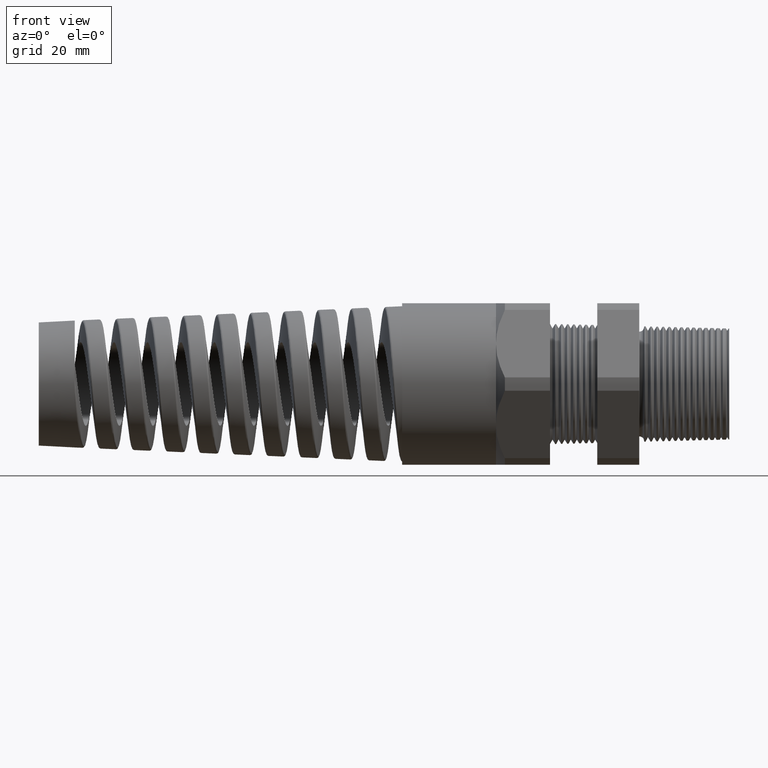
[diagram: clean part render]
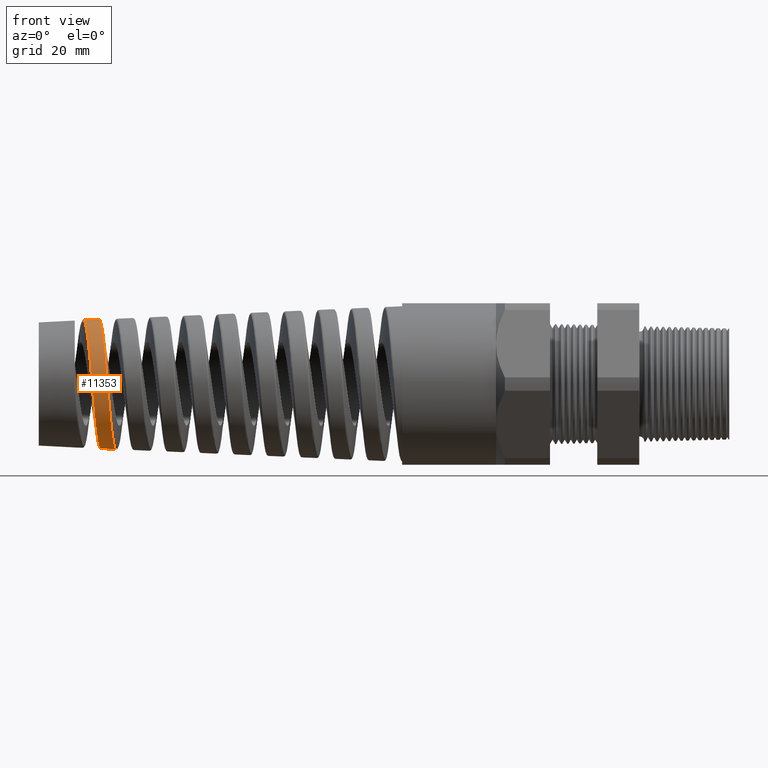
[diagram: same view with one face highlighted and labeled with its STEP entity id]
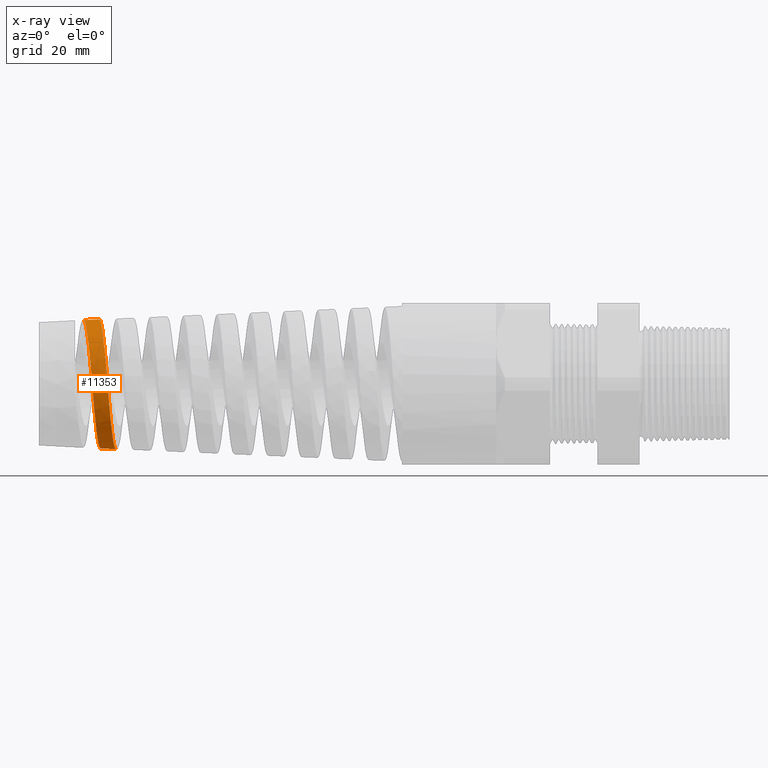
[diagram: x-ray of the same camera — body ghosted, the highlighted face saturated]
A machine part, front view. The second image highlights one B-rep face of the part: STEP entity #11353.
The next image is the same camera in x-ray: the body ghosted, the highlighted face saturated — about 0% of this face is hidden behind the body in this view.
In plain terms, the highlighted conical surface has half-angle 2.5 deg.
Its self-contained STEP definition (entity closure, byte-faithful):
#2776 = CARTESIAN_POINT ( 'NONE',  ( -3.853580578884478100, -2.497534897661308500E-014, 0.4233109678529750600 ) ) ;
#2777 = CARTESIAN_POINT ( 'NONE',  ( -3.851285439636109100, -0.02776085274634721900, 0.4234111757966636000 ) ) ;
#2778 = CARTESIAN_POINT ( 'NONE',  ( -3.849003074422635800, -0.05541501797271731300, 0.4208065801318443500 ) ) ;
#2779 = CARTESIAN_POINT ( 'NONE',  ( -3.845532058814507400, -0.09672548755626631000, 0.4127116216461909100 ) ) ;
#2780 = CARTESIAN_POINT ( 'NONE',  ( -3.844375381796193200, -0.1103603006328572300, 0.4093249471423072700 ) ) ;
#2781 = CARTESIAN_POINT ( 'NONE',  ( -3.842080249248849300, -0.1370132306356477700, 0.4012961643539277300 ) ) ;
#2782 = CARTESIAN_POINT ( 'NONE',  ( -3.839794071192375000, -0.1631601890904116300, 0.3919910300949284200 ) ) ;
#2783 = CARTESIAN_POINT ( 'NONE',  ( -3.837503328888759200, -0.1883045765612151600, 0.3801618450078019200 ) ) ;
#2784 = CARTESIAN_POINT ( 'NONE',  ( -3.835200257559571800, -0.2129378772243039600, 0.3670482054483890100 ) ) ;
#2785 = CARTESIAN_POINT ( 'NONE',  ( -3.834036449721415400, -0.2250587702172329700, 0.3598045955692660800 ) ) ;
#2786 = CARTESIAN_POINT ( 'NONE',  ( -3.830579917580843900, -0.2599495876072638300, 0.3365285009135591800 ) ) ;
#2787 = CARTESIAN_POINT ( 'NONE',  ( -3.828308592394920500, -0.2814001034594741900, 0.3189269256192355800 ) ) ;
#2788 = CARTESIAN_POINT ( 'NONE',  ( -3.823732271376244300, -0.3207398223203579700, 0.2796354947121221800 ) ) ;
#2789 = CARTESIAN_POINT ( 'NONE',  ( -3.821406997314784200, -0.3387342247674439700, 0.2577125021648524700 ) ) ;
#2790 = CARTESIAN_POINT ( 'NONE',  ( -3.816825480202521400, -0.3696104717444693200, 0.2114584181447838900 ) ) ;
#2791 = CARTESIAN_POINT ( 'NONE',  ( -3.814553926683602400, -0.3826919854710199600, 0.1869910221630510000 ) ) ;
#2792 = CARTESIAN_POINT ( 'NONE',  ( -3.811109429267376400, -0.3987246888192297900, 0.1482546284583072800 ) ) ;
#2793 = CARTESIAN_POINT ( 'NONE',  ( -3.809950713183643400, -0.4034736127711798800, 0.1349535291621620200 ) ) ;
#2794 = CARTESIAN_POINT ( 'NONE',  ( -3.807656853516018500, -0.4115519656134363800, 0.1082292630213497100 ) ) ;
#2795 = CARTESIAN_POINT ( 'NONE',  ( -3.806516064744005500, -0.4149120504375729500, 0.09474415240817112000 ) ) ;
#2796 = CARTESIAN_POINT ( 'NONE',  ( -3.803095209420124700, -0.4229945039553710800, 0.05392842569763840700 ) ) ;
#2797 = CARTESIAN_POINT ( 'NONE',  ( -3.800808788014024700, -0.4257383265779275900, 0.02614999097318905200 ) ) ;
#2798 = CARTESIAN_POINT ( 'NONE',  ( -3.796196077092654600, -0.4256843366583172900, -0.03002106878506442500 ) ) ;
#2799 = CARTESIAN_POINT ( 'NONE',  ( -3.793929706314598700, -0.4229051416696659200, -0.05766656843145517200 ) ) ;
#2800 = CARTESIAN_POINT ( 'NONE',  ( -3.790515210227183300, -0.4147562466076311100, -0.09849239108184701400 ) ) ;
#2801 = CARTESIAN_POINT ( 'NONE',  ( -3.789374705890222300, -0.4113717717552503600, -0.1119931626436366100 ) ) ;
#2802 = CARTESIAN_POINT ( 'NONE',  ( -3.787077620666182000, -0.4032329691646131500, -0.1387726853103420400 ) ) ;
#2803 = CARTESIAN_POINT ( 'NONE',  ( -3.785920669086813000, -0.3984676716223398700, -0.1520519821059694900 ) ) ;
#2804 = CARTESIAN_POINT ( 'NONE',  ( -3.782486964041948100, -0.3824244535847969300, -0.1906798883749353000 ) ) ;
#2805 = CARTESIAN_POINT ( 'NONE',  ( -3.780224053971725300, -0.3693339970560732300, -0.2151325488887025900 ) ) ;
#2806 = CARTESIAN_POINT ( 'NONE',  ( -3.776803807985695800, -0.3461242957422104300, -0.2498665379599796200 ) ) ;
#2807 = CARTESIAN_POINT ( 'NONE',  ( -3.775653461937913000, -0.3377442694863082600, -0.2611697843359349600 ) ) ;
#2808 = CARTESIAN_POINT ( 'NONE',  ( -3.773357632368075100, -0.3199490972191119700, -0.2828409074235293500 ) ) ;
#2809 = CARTESIAN_POINT ( 'NONE',  ( -3.772217762177126200, -0.3105838818454733100, -0.2931599467681831900 ) ) ;
#2810 = CARTESIAN_POINT ( 'NONE',  ( -3.768805135775986900, -0.2811270985855324200, -0.3226115970301493600 ) ) ;
#2811 = CARTESIAN_POINT ( 'NONE',  ( -3.766538810541089100, -0.2596872627869065100, -0.3402529142136160300 ) ) ;
#2812 = CARTESIAN_POINT ( 'NONE',  ( -3.763098556992395100, -0.2247539631646793500, -0.3636404951047688100 ) ) ;
#2813 = CARTESIAN_POINT ( 'NONE',  ( -3.761948583053126500, -0.2126781445318212700, -0.3708872266736180100 ) ) ;
#2814 = CARTESIAN_POINT ( 'NONE',  ( -3.759671641865488300, -0.1881184328135015700, -0.3840387405049407500 ) ) ;
#2815 = CARTESIAN_POINT ( 'NONE',  ( -3.757405759932371600, -0.1630305282220253200, -0.3959316536730841900 ) ) ;
#2816 = CARTESIAN_POINT ( 'NONE',  ( -3.755138174017058200, -0.1369025021528536800, -0.4053411280802409200 ) ) ;
#2817 = CARTESIAN_POINT ( 'NONE',  ( -3.752858679607595800, -0.1102476548794573300, -0.4134903930973449800 ) ) ;
#2818 = CARTESIAN_POINT ( 'NONE',  ( -3.751706646986736600, -0.09658041140886722300, -0.4169483957784525000 ) ) ;
#2819 = CARTESIAN_POINT ( 'NONE',  ( -3.748270037075584100, -0.05539608601184022000, -0.4252312872119439800 ) ) ;
#2820 = CARTESIAN_POINT ( 'NONE',  ( -3.746012907309678000, -0.02777613424006502100, -0.4280074738204736100 ) ) ;
#2821 = CARTESIAN_POINT ( 'NONE',  ( -3.743746689491925100, 1.074689038493862100E-012, -0.4281064190271631200 ) ) ;
#2822 = B_SPLINE_CURVE_WITH_KNOTS ( 'NONE', 3,
 ( #2821, #2820, #2819, #2818, #2817, #2816, #2815, #2814, #2813, #2812, #2811, #2810, #2809, #2808, #2807, #2806, #2805, #2804, #2803, #2802, #2801, #2800, #2799, #2798, #2797, #2796, #2795, #2794, #2793, #2792, #2791, #2790, #2789, #2788, #2787, #2786, #2785, #2784, #2783, #2782, #2781, #2780, #2779, #2778, #2777, #2776 ),
 .UNSPECIFIED., .F., .F.,
 ( 4, 2, 2, 1, 2, 2, 2, 2, 2, 2, 2, 2, 2, 2, 2, 2, 2, 2, 2, 2, 1, 2, 2, 4 ),
 ( 0.6425872255184420500, 0.6447318629339441300, 0.6458041816416951700, 0.6468765003494462200, 0.6479488190571972600, 0.6490211377649483000, 0.6511657751804502700, 0.6522380938882013100, 0.6533104125959523500, 0.6554550500114544300, 0.6565273687192054700, 0.6575996874269565100, 0.6597443248424586000, 0.6618889622579606800, 0.6629612809657117200, 0.6640335996734627600, 0.6661782370889648400, 0.6683228745044668100, 0.6704675119199688900, 0.6715398306277199400, 0.6726121493354709800, 0.6736844680432220200, 0.6747567867509730600, 0.6769014241664751400 ),
 .UNSPECIFIED. ) ;
#2826 = CARTESIAN_POINT ( 'NONE',  ( -3.844563106295216100, -1.186953627347830300E-015, -0.4237046792088738900 ) ) ;
#2827 = CARTESIAN_POINT ( 'NONE',  ( -3.846846038248303000, -0.02757322120012684400, -0.4236050042472059900 ) ) ;
#2828 = CARTESIAN_POINT ( 'NONE',  ( -3.849111767233623000, -0.05488044764224979400, -0.4208397577939517200 ) ) ;
#2829 = CARTESIAN_POINT ( 'NONE',  ( -3.852538223201302800, -0.09543739370612791500, -0.4126894143384722800 ) ) ;
#2830 = CARTESIAN_POINT ( 'NONE',  ( -3.853691257491132800, -0.1089604303809387100, -0.4092772122585480200 ) ) ;
#2831 = CARTESIAN_POINT ( 'NONE',  ( -3.855986019860059500, -0.1354726532403444100, -0.4011764683794773500 ) ) ;
#2832 = CARTESIAN_POINT ( 'NONE',  ( -3.857125530876194000, -0.1484383171194071400, -0.3965046204751239100 ) ) ;
#2833 = CARTESIAN_POINT ( 'NONE',  ( -3.860538871580322600, -0.1864855461449071400, -0.3806743248154436100 ) ) ;
#2834 = CARTESIAN_POINT ( 'NONE',  ( -3.862807814746394000, -0.2107253770441542800, -0.3677183208822413200 ) ) ;
#2835 = CARTESIAN_POINT ( 'NONE',  ( -3.866265128735741000, -0.2453379636423133300, -0.3445657590692667300 ) ) ;
#2836 = CARTESIAN_POINT ( 'NONE',  ( -3.867419229596492900, -0.2565055094963735700, -0.3362673405635595000 ) ) ;
#2837 = CARTESIAN_POINT ( 'NONE',  ( -3.869705577763811600, -0.2777937438260942900, -0.3187742993558137000 ) ) ;
#2838 = CARTESIAN_POINT ( 'NONE',  ( -3.870843041766463900, -0.2879655772575991400, -0.3095461471358954000 ) ) ;
#2839 = CARTESIAN_POINT ( 'NONE',  ( -3.873119129891622300, -0.3073743571895170000, -0.2901379345708421900 ) ) ;
#2840 = CARTESIAN_POINT ( 'NONE',  ( -3.874257702434703800, -0.3166113218445922300, -0.2799578865763001100 ) ) ;
#2841 = CARTESIAN_POINT ( 'NONE',  ( -3.876548030405796700, -0.3341334437455605300, -0.2586300819737778500 ) ) ;
#2842 = CARTESIAN_POINT ( 'NONE',  ( -3.877706192582786000, -0.3424591207343760700, -0.2474164883779605700 ) ) ;
#2843 = CARTESIAN_POINT ( 'NONE',  ( -3.881157017823184700, -0.3655408152948532700, -0.2128869945876488400 ) ) ;
#2844 = CARTESIAN_POINT ( 'NONE',  ( -3.883432004298365700, -0.3784862153589724200, -0.1886660088400455000 ) ) ;
#2845 = CARTESIAN_POINT ( 'NONE',  ( -3.888004095118478900, -0.3995859537187126900, -0.1378742169772406700 ) ) ;
#2846 = CARTESIAN_POINT ( 'NONE',  ( -3.890322888159577300, -0.4077590818921419900, -0.1110275295300262200 ) ) ;
#2847 = CARTESIAN_POINT ( 'NONE',  ( -3.894899935569495300, -0.4185376133188967200, -0.05702930041337982100 ) ) ;
#2848 = CARTESIAN_POINT ( 'NONE',  ( -3.897174119142685200, -0.4212661035967230100, -0.02971307161718521300 ) ) ;
#2849 = CARTESIAN_POINT ( 'NONE',  ( -3.900627738420495000, -0.4213199107724304200, 0.01173723796066971300 ) ) ;
#2850 = CARTESIAN_POINT ( 'NONE',  ( -3.901791280460893400, -0.4206486594043861200, 0.02569826880872882700 ) ) ;
#2851 = CARTESIAN_POINT ( 'NONE',  ( -3.904094103249398100, -0.4179577388744470400, 0.05321968916675346600 ) ) ;
#2852 = CARTESIAN_POINT ( 'NONE',  ( -3.905237778439790500, -0.4159444113518857000, 0.06683172011228576100 ) ) ;
#2853 = CARTESIAN_POINT ( 'NONE',  ( -3.908665022864364700, -0.4079428914570700200, 0.1072295157030792000 ) ) ;
#2854 = CARTESIAN_POINT ( 'NONE',  ( -3.910946872365971500, -0.4000020932082042900, 0.1336062123976352000 ) ) ;
#2855 = CARTESIAN_POINT ( 'NONE',  ( -3.915587418880424100, -0.3787380894331303100, 0.1850385785740944800 ) ) ;
#2856 = CARTESIAN_POINT ( 'NONE',  ( -3.917874130639448000, -0.3657534295223235400, 0.2092891003533140200 ) ) ;
#2857 = CARTESIAN_POINT ( 'NONE',  ( -3.921310343690428600, -0.3428857313527411400, 0.2435471491265236400 ) ) ;
#2858 = CARTESIAN_POINT ( 'NONE',  ( -3.922456587459702600, -0.3346938745543734900, 0.2546109559416335200 ) ) ;
#2859 = CARTESIAN_POINT ( 'NONE',  ( -3.924763784843837900, -0.3171448059844801400, 0.2760094792314299900 ) ) ;
#2860 = CARTESIAN_POINT ( 'NONE',  ( -3.925927340231038600, -0.3077594783352605700, 0.2863610327131415600 ) ) ;
#2861 = CARTESIAN_POINT ( 'NONE',  ( -3.929382771145153900, -0.2784558785782513300, 0.3156358784141779500 ) ) ;
#2862 = CARTESIAN_POINT ( 'NONE',  ( -3.931664893739097400, -0.2572243844908180800, 0.3330344505624710500 ) ) ;
#2863 = CARTESIAN_POINT ( 'NONE',  ( -3.935120124728566100, -0.2228542368582150400, 0.3559726135933568600 ) ) ;
#2864 = CARTESIAN_POINT ( 'NONE',  ( -3.936281787501766200, -0.2109235551945801700, 0.3631146740084129100 ) ) ;
#2865 = CARTESIAN_POINT ( 'NONE',  ( -3.938602587088727800, -0.1864147506227439000, 0.3761721794987525900 ) ) ;
#2866 = CARTESIAN_POINT ( 'NONE',  ( -3.939753400622565800, -0.1739301208987189300, 0.3820447836538107300 ) ) ;
#2867 = CARTESIAN_POINT ( 'NONE',  ( -3.943197038448611000, -0.1358075859127554100, 0.3977521094897556500 ) ) ;
#2868 = CARTESIAN_POINT ( 'NONE',  ( -3.945481067038688000, -0.1095073904565150000, 0.4056945236130226600 ) ) ;
#2869 = CARTESIAN_POINT ( 'NONE',  ( -3.948961278640074700, -0.06869939675601817500, 0.4137105247279922500 ) ) ;
#2870 = CARTESIAN_POINT ( 'NONE',  ( -3.950127672331957800, -0.05489917061710687000, 0.4157130232426391500 ) ) ;
#2871 = CARTESIAN_POINT ( 'NONE',  ( -3.952437585366648200, -0.02744814017730819500, 0.4183220198754039600 ) ) ;
#2872 = CARTESIAN_POINT ( 'NONE',  ( -3.953587403790785400, -0.01372347553279797100, 0.4189445755802621000 ) ) ;
#2873 = CARTESIAN_POINT ( 'NONE',  ( -3.954736314211745500, -5.194515947539078600E-013, 0.4188944130679825900 ) ) ;
#2874 = B_SPLINE_CURVE_WITH_KNOTS ( 'NONE', 3,
 ( #2873, #2872, #2871, #2870, #2869, #2868, #2867, #2866, #2865, #2864, #2863, #2862, #2861, #2860, #2859, #2858, #2857, #2856, #2855, #2854, #2853, #2852, #2851, #2850, #2849, #2848, #2847, #2846, #2845, #2844, #2843, #2842, #2841, #2840, #2839, #2838, #2837, #2836, #2835, #2834, #2833, #2832, #2831, #2830, #2829, #2828, #2827, #2826 ),
 .UNSPECIFIED., .F., .F.,
 ( 4, 2, 2, 2, 2, 2, 2, 2, 2, 2, 2, 2, 2, 2, 2, 2, 2, 2, 2, 2, 2, 2, 2, 4 ),
 ( 0.01802185273913218400, 0.01908283631753912600, 0.02014381989594606400, 0.02226578705275994100, 0.02332677063116687900, 0.02438775420957382100, 0.02650972136638769800, 0.02757070494479463600, 0.02863168852320157500, 0.03075365568001545100, 0.03287562283682933500, 0.03393660641523627000, 0.03499758999364321200, 0.03711955715045709600, 0.03924152430727097200, 0.04136349146408485600, 0.04242447504249179100, 0.04348545862089872600, 0.04454644219930566800, 0.04560742577771261000, 0.04772939293452647900, 0.04879037651293340700, 0.04985136009134034200, 0.05197332724815420500 ),
 .UNSPECIFIED. ) ;
#6445 = DIRECTION ( 'NONE',  ( 0.0000000000000000000, 0.0000000000000000000, -1.000000000000000000 ) ) ;
#6446 = DIRECTION ( 'NONE',  ( 1.000000000000000000, 0.0000000000000000000, 0.0000000000000000000 ) ) ;
#6447 = CARTESIAN_POINT ( 'NONE',  ( -1.409999999999999900, 0.0000000000000000000, 0.0000000000000000000 ) ) ;
#6448 = AXIS2_PLACEMENT_3D ( 'NONE', #6447, #6446, #6445 ) ;
#6476 = CONICAL_SURFACE ( 'NONE', #6448, 0.5299999999999998000, 0.04363323129985853500 ) ;
#6477 = FACE_OUTER_BOUND ( 'NONE', #11274, .T. ) ;
#7890 = CARTESIAN_POINT ( 'NONE',  ( -3.954736314211745500, -5.194515947539078600E-013, 0.4188944130679825900 ) ) ;
#7949 = CARTESIAN_POINT ( 'NONE',  ( -3.853580578884478100, -2.497534897661308500E-014, 0.4233109678529750600 ) ) ;
#7950 = DIRECTION ( 'NONE',  ( 0.9990482215818576900, 5.341834311772759500E-018, 0.04361938736533629800 ) ) ;
#7951 = VECTOR ( 'NONE', #7950, 39.37007874015748100 ) ;
#7952 = CARTESIAN_POINT ( 'NONE',  ( -1.409999999999999900, 6.490628035480970000E-017, 0.5299999999999998000 ) ) ;
#7953 = LINE ( 'NONE', #7952, #7951 ) ;
#8001 = DIRECTION ( 'NONE',  ( 0.9990482215818576900, 0.0000000000000000000, -0.04361938736533629800 ) ) ;
#8002 = VECTOR ( 'NONE', #8001, 39.37007874015748100 ) ;
#8003 = CARTESIAN_POINT ( 'NONE',  ( -1.409999999999999900, 0.0000000000000000000, -0.5299999999999998000 ) ) ;
#8004 = LINE ( 'NONE', #8003, #8002 ) ;
#8005 = CARTESIAN_POINT ( 'NONE',  ( -3.743746689491925100, 1.074689038493862100E-012, -0.4281064190271631200 ) ) ;
#8210 = CARTESIAN_POINT ( 'NONE',  ( -3.844563106295216100, -1.186953627347830300E-015, -0.4237046792088738900 ) ) ;
#11274 = EDGE_LOOP ( 'NONE', ( #11275, #11276, #11278, #11279 ) ) ;
#11275 = ORIENTED_EDGE ( 'NONE', *, *, #11613, .F. ) ;
#11276 = ORIENTED_EDGE ( 'NONE', *, *, #11277, .T. ) ;
#11277 = EDGE_CURVE ( 'NONE', #11611, #11664, #2874, .T. ) ;
#11278 = ORIENTED_EDGE ( 'NONE', *, *, #11636, .T. ) ;
#11279 = ORIENTED_EDGE ( 'NONE', *, *, #11280, .T. ) ;
#11280 = EDGE_CURVE ( 'NONE', #11634, #11614, #2822, .T. ) ;
#11353 = ADVANCED_FACE ( 'NONE', ( #6477 ), #6476, .T. ) ;
#11611 = VERTEX_POINT ( 'NONE', #7890 ) ;
#11613 = EDGE_CURVE ( 'NONE', #11611, #11614, #7953, .T. ) ;
#11614 = VERTEX_POINT ( 'NONE', #7949 ) ;
#11634 = VERTEX_POINT ( 'NONE', #8005 ) ;
#11636 = EDGE_CURVE ( 'NONE', #11664, #11634, #8004, .T. ) ;
#11664 = VERTEX_POINT ( 'NONE', #8210 ) ;